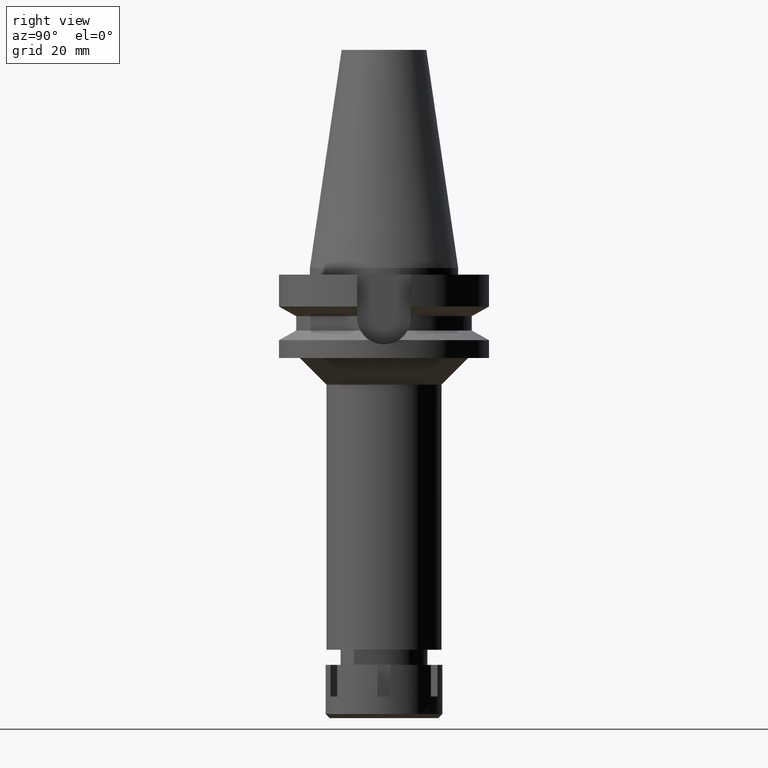
[diagram: clean part render]
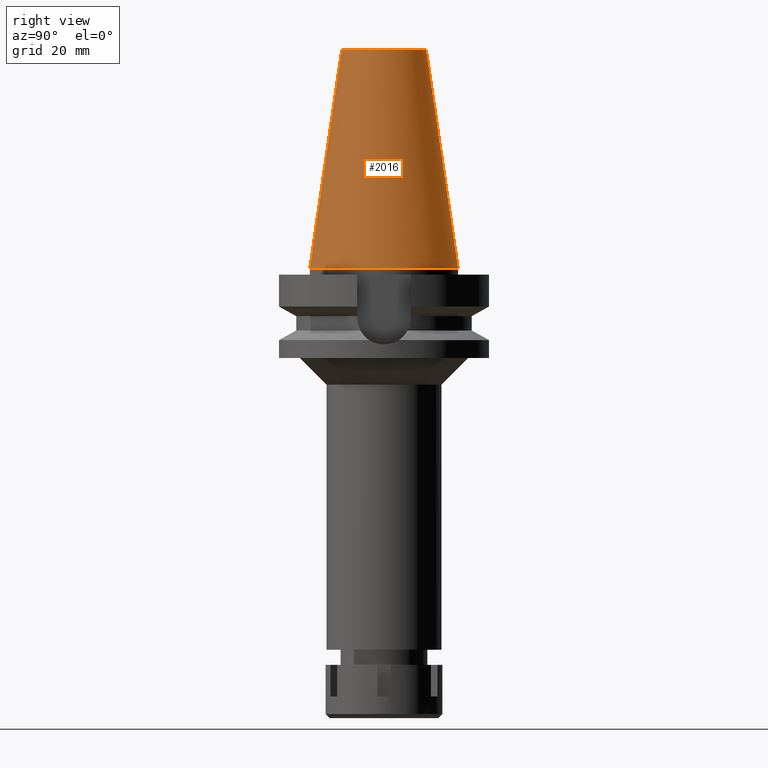
[diagram: same view with one face highlighted and labeled with its STEP entity id]
A machine part, right view. The second image highlights one B-rep face of the part: STEP entity #2016.
In plain terms, the highlighted conical surface has half-angle 8.297 deg.
Its self-contained STEP definition (entity closure, byte-faithful):
#147 = CARTESIAN_POINT ( 'NONE',  ( 0.0000000000000000000, 1.625106302469000024E-14, 2.842170943039999687E-14 ) ) ;
#272 = EDGE_CURVE ( 'NONE', #2119, #1956, #3101, .T. ) ;
#337 = EDGE_CURVE ( 'NONE', #1956, #1394, #2066, .T. ) ;
#646 = ORIENTED_EDGE ( 'NONE', *, *, #337, .T. ) ;
#680 = LINE ( 'NONE', #2348, #3516 ) ;
#738 = ORIENTED_EDGE ( 'NONE', *, *, #1622, .F. ) ;
#1046 = CARTESIAN_POINT ( 'NONE',  ( 0.0000000000000000000, 1.625106302469000024E-14, 32.70000000000000284 ) ) ;
#1089 = DIRECTION ( 'NONE',  ( 0.0000000000000000000, -1.000000000000000000, 0.0000000000000000000 ) ) ;
#1236 = ORIENTED_EDGE ( 'NONE', *, *, #272, .T. ) ;
#1341 = DIRECTION ( 'NONE',  ( 0.0000000000000000000, 0.0000000000000000000, -1.000000000000000000 ) ) ;
#1360 = FACE_OUTER_BOUND ( 'NONE', #2608, .T. ) ;
#1394 = VERTEX_POINT ( 'NONE', #3637 ) ;
#1396 = CARTESIAN_POINT ( 'NONE',  ( 0.0000000000000000000, -12.68766899429999917, 65.40000000000000568 ) ) ;
#1561 = DIRECTION ( 'NONE',  ( 0.0000000000000000000, 0.0000000000000000000, -1.000000000000000000 ) ) ;
#1622 = EDGE_CURVE ( 'NONE', #2119, #2894, #680, .T. ) ;
#1650 = AXIS2_PLACEMENT_3D ( 'NONE', #147, #2340, #2670 ) ;
#1818 = AXIS2_PLACEMENT_3D ( 'NONE', #1046, #1341, #1089 ) ;
#1868 = CONICAL_SURFACE ( 'NONE', #1818, 17.45633449714999941, 0.1448099680379422438 ) ;
#1956 = VERTEX_POINT ( 'NONE', #1396 ) ;
#1987 = AXIS2_PLACEMENT_3D ( 'NONE', #3489, #1561, #2376 ) ;
#2016 = ADVANCED_FACE ( 'NONE', ( #1360 ), #1868, .T. ) ;
#2066 = LINE ( 'NONE', #3072, #2379 ) ;
#2105 = DIRECTION ( 'NONE',  ( 0.0000000000000000000, 0.1443043893539925626, -0.9895333461855498891 ) ) ;
#2119 = VERTEX_POINT ( 'NONE', #3148 ) ;
#2340 = DIRECTION ( 'NONE',  ( 0.0000000000000000000, 0.0000000000000000000, -1.000000000000000000 ) ) ;
#2348 = CARTESIAN_POINT ( 'NONE',  ( 0.0000000000000000000, 12.68766899429999917, 65.40000000000000568 ) ) ;
#2376 = DIRECTION ( 'NONE',  ( 0.0000000000000000000, 1.000000000000000000, 0.0000000000000000000 ) ) ;
#2379 = VECTOR ( 'NONE', #3547, 1000.000000000000114 ) ;
#2465 = CARTESIAN_POINT ( 'NONE',  ( 0.0000000000000000000, 22.22500000000000142, 9.947598300640998705E-14 ) ) ;
#2608 = EDGE_LOOP ( 'NONE', ( #1236, #646, #3389, #738 ) ) ;
#2670 = DIRECTION ( 'NONE',  ( 0.0000000000000000000, 1.000000000000000000, 0.0000000000000000000 ) ) ;
#2792 = EDGE_CURVE ( 'NONE', #2894, #1394, #3583, .T. ) ;
#2894 = VERTEX_POINT ( 'NONE', #2465 ) ;
#3072 = CARTESIAN_POINT ( 'NONE',  ( 0.0000000000000000000, -12.68766899429999917, 65.40000000000000568 ) ) ;
#3101 = CIRCLE ( 'NONE', #1987, 12.68766899429999917 ) ;
#3148 = CARTESIAN_POINT ( 'NONE',  ( 0.0000000000000000000, 12.68766899429999917, 65.40000000000000568 ) ) ;
#3389 = ORIENTED_EDGE ( 'NONE', *, *, #2792, .F. ) ;
#3489 = CARTESIAN_POINT ( 'NONE',  ( 0.0000000000000000000, 1.625106302469000024E-14, 65.40000000000000568 ) ) ;
#3516 = VECTOR ( 'NONE', #2105, 1000.000000000000114 ) ;
#3547 = DIRECTION ( 'NONE',  ( 0.0000000000000000000, -0.1443043893539925626, -0.9895333461855498891 ) ) ;
#3583 = CIRCLE ( 'NONE', #1650, 22.22500000000000142 ) ;
#3637 = CARTESIAN_POINT ( 'NONE',  ( 0.0000000000000000000, -22.22500000000000142, 2.842170943039999687E-14 ) ) ;